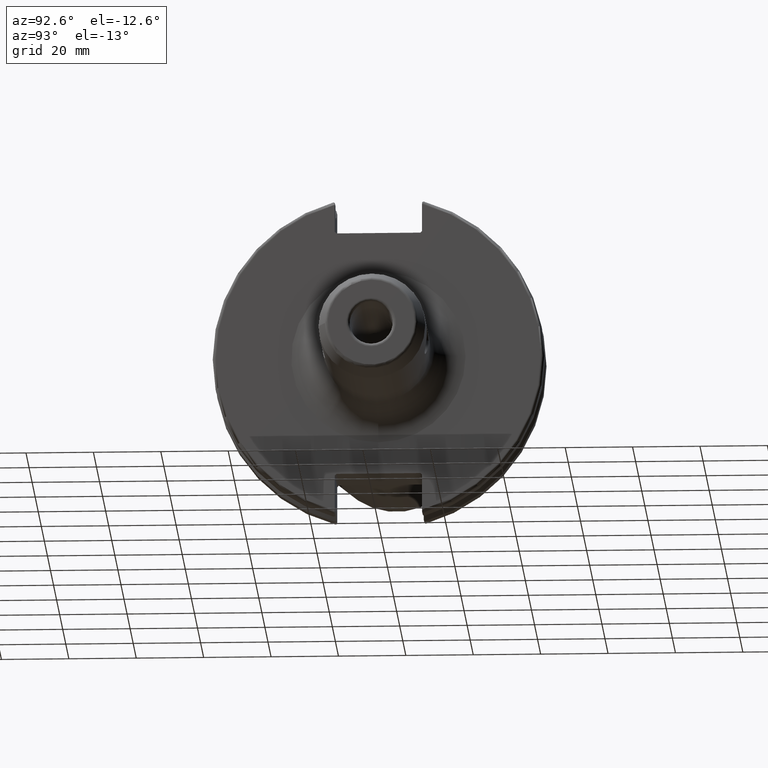
[diagram: clean part render]
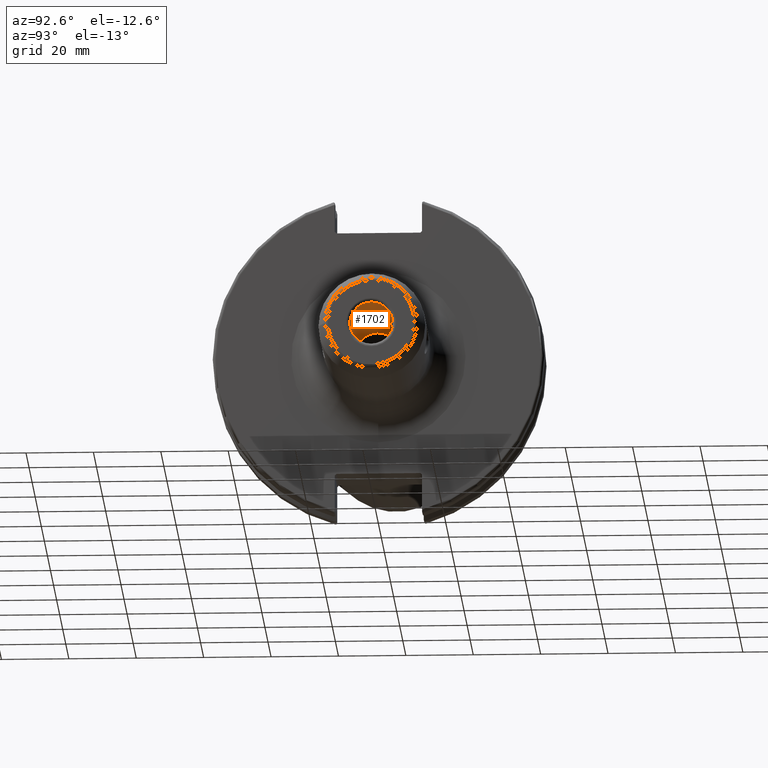
[diagram: same view with one face highlighted and labeled with its STEP entity id]
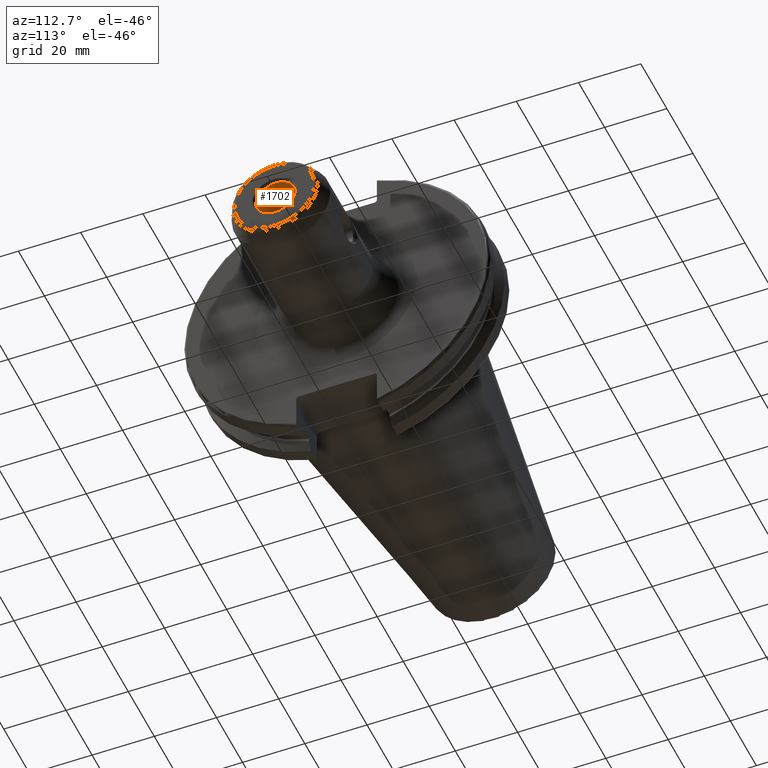
[diagram: same view with one face highlighted and labeled with its STEP entity id]
A machine part, auxiliary view. The second image highlights one B-rep face of the part: STEP entity #1702.
A second angle (auxiliary view) of the same face is appended — the face is thin or edge-on in the first view.
In plain terms, the highlighted cylindrical surface (bore or boss wall) has radius 6.35 mm, axis along (1, 0, 0).
Its self-contained STEP definition (entity closure, byte-faithful):
#47=FACE_BOUND('',#549,.T.);
#130=LINE('',#2731,#225);
#225=VECTOR('',#2100,6.35);
#329=CIRCLE('',#1834,6.35);
#330=CIRCLE('',#1835,6.35);
#333=CIRCLE('',#1840,6.35);
#334=CIRCLE('',#1841,6.35);
#419=CYLINDRICAL_SURFACE('',#1839,6.35);
#455=FACE_OUTER_BOUND('',#548,.T.);
#548=EDGE_LOOP('',(#1229,#1230,#1231,#1232,#1233,#1234));
#549=EDGE_LOOP('',(#1235,#1236));
#646=B_SPLINE_CURVE_WITH_KNOTS('',3,(#2565,#2566,#2567,#2568,#2569,#2570,
#2571,#2572,#2573,#2574,#2575,#2576,#2577,#2578,#2579,#2580,#2581,#2582,
#2583,#2584,#2585,#2586,#2587,#2588,#2589,#2590,#2591,#2592,#2593,#2594,
#2595,#2596),.UNSPECIFIED.,.F.,.F.,(4,2,2,2,2,2,2,2,2,2,2,2,2,2,2,4),(0.,
0.0984926911208122,0.196985382241624,0.393970764483249,0.586264117205991,
0.778557469928733,0.970850822651475,1.16314417537422,1.36012955761584,1.45862224873665,
1.55711493985747,1.65560763097828,1.75410032209909,1.95108570434071,2.14337905706345,
2.3356724097862),.UNSPECIFIED.);
#647=B_SPLINE_CURVE_WITH_KNOTS('',3,(#2597,#2598,#2599,#2600,#2601,#2602,
#2603,#2604,#2605,#2606,#2607,#2608),.UNSPECIFIED.,.F.,.F.,(4,2,2,2,2,4),
(2.3356724097862,2.52796576250894,2.72025911523168,2.9172444974733,3.01573718859412,
3.11422987971493),.UNSPECIFIED.);
#693=VERTEX_POINT('',#2562);
#694=VERTEX_POINT('',#2564);
#726=VERTEX_POINT('',#2719);
#727=VERTEX_POINT('',#2721);
#730=VERTEX_POINT('',#2730);
#731=VERTEX_POINT('',#2732);
#886=EDGE_CURVE('',#694,#693,#646,.T.);
#887=EDGE_CURVE('',#693,#694,#647,.T.);
#926=EDGE_CURVE('',#726,#727,#329,.T.);
#927=EDGE_CURVE('',#727,#726,#330,.T.);
#930=EDGE_CURVE('',#727,#730,#130,.T.);
#931=EDGE_CURVE('',#730,#731,#333,.T.);
#932=EDGE_CURVE('',#731,#730,#334,.T.);
#1229=ORIENTED_EDGE('',*,*,#926,.F.);
#1230=ORIENTED_EDGE('',*,*,#927,.F.);
#1231=ORIENTED_EDGE('',*,*,#930,.T.);
#1232=ORIENTED_EDGE('',*,*,#931,.T.);
#1233=ORIENTED_EDGE('',*,*,#932,.T.);
#1234=ORIENTED_EDGE('',*,*,#930,.F.);
#1235=ORIENTED_EDGE('',*,*,#886,.T.);
#1236=ORIENTED_EDGE('',*,*,#887,.T.);
#1702=ADVANCED_FACE('',(#455,#47),#419,.F.);
#1834=AXIS2_PLACEMENT_3D('',#2722,#2088,#2089);
#1835=AXIS2_PLACEMENT_3D('',#2723,#2090,#2091);
#1839=AXIS2_PLACEMENT_3D('',#2729,#2098,#2099);
#1840=AXIS2_PLACEMENT_3D('',#2733,#2101,#2102);
#1841=AXIS2_PLACEMENT_3D('',#2734,#2103,#2104);
#2088=DIRECTION('center_axis',(-1.,0.,0.));
#2089=DIRECTION('ref_axis',(0.,-1.22464679914735E-16,1.));
#2090=DIRECTION('center_axis',(-1.,0.,0.));
#2091=DIRECTION('ref_axis',(0.,-1.22464679914735E-16,1.));
#2098=DIRECTION('center_axis',(1.,0.,0.));
#2099=DIRECTION('ref_axis',(0.,0.,-1.));
#2100=DIRECTION('',(-1.,0.,0.));
#2101=DIRECTION('center_axis',(-1.,0.,0.));
#2102=DIRECTION('ref_axis',(0.,0.,-1.));
#2103=DIRECTION('center_axis',(-1.,0.,0.));
#2104=DIRECTION('ref_axis',(0.,0.,-1.));
#2562=CARTESIAN_POINT('',(41.9359,6.35,6.44784919981993E-16));
#2564=CARTESIAN_POINT('',(46.8,4.08203762721511,4.8641));
#2565=CARTESIAN_POINT('Ctrl Pts',(46.8,4.08203762721511,4.8641));
#2566=CARTESIAN_POINT('Ctrl Pts',(47.1283089704027,4.08203762721511,4.8641));
#2567=CARTESIAN_POINT('Ctrl Pts',(47.45674516591,4.12285007981399,4.83056934710562));
#2568=CARTESIAN_POINT('Ctrl Pts',(48.095391925752,4.27137197971262,4.69975257900775));
#2569=CARTESIAN_POINT('Ctrl Pts',(48.4057788490239,4.37838386103913,4.60253646928392));
#2570=CARTESIAN_POINT('Ctrl Pts',(49.2894834666426,4.75134654570808,4.22747517891783));
#2571=CARTESIAN_POINT('Ctrl Pts',(49.8169274523701,5.0656178137759,3.86194873636887));
#2572=CARTESIAN_POINT('Ctrl Pts',(50.6518848809612,5.60362060326425,3.02699130777775));
#2573=CARTESIAN_POINT('Ctrl Pts',(51.0232790786749,5.87111368991344,2.49860033294107));
#2574=CARTESIAN_POINT('Ctrl Pts',(51.5299931623389,6.24553636617503,1.30623756351294));
#2575=CARTESIAN_POINT('Ctrl Pts',(51.6641,6.35,0.64097784240914));
#2576=CARTESIAN_POINT('Ctrl Pts',(51.6641,6.35,-0.640977842409141));
#2577=CARTESIAN_POINT('Ctrl Pts',(51.5299931623389,6.24553636617503,-1.30623756351294));
#2578=CARTESIAN_POINT('Ctrl Pts',(51.0232790786749,5.87111368991344,-2.49860033294107));
#2579=CARTESIAN_POINT('Ctrl Pts',(50.6518848809612,5.60362060326425,-3.02699130777775));
#2580=CARTESIAN_POINT('Ctrl Pts',(49.8169274523701,5.0656178137759,-3.86194873636887));
#2581=CARTESIAN_POINT('Ctrl Pts',(49.2894834666426,4.75134654570807,-4.22747517891783));
#2582=CARTESIAN_POINT('Ctrl Pts',(48.4057788490239,4.37838386103913,-4.60253646928392));
#2583=CARTESIAN_POINT('Ctrl Pts',(48.095391925752,4.27137197971262,-4.69975257900775));
#2584=CARTESIAN_POINT('Ctrl Pts',(47.45674516591,4.12285007981399,-4.83056934710562));
#2585=CARTESIAN_POINT('Ctrl Pts',(47.1283089704027,4.08203762721512,-4.8641));
#2586=CARTESIAN_POINT('Ctrl Pts',(46.4716910295973,4.08203762721511,-4.8641));
#2587=CARTESIAN_POINT('Ctrl Pts',(46.1432548340899,4.12285007981399,-4.83056934710563));
#2588=CARTESIAN_POINT('Ctrl Pts',(45.504608074248,4.27137197971261,-4.69975257900775));
#2589=CARTESIAN_POINT('Ctrl Pts',(45.1942211509761,4.37838386103912,-4.60253646928393));
#2590=CARTESIAN_POINT('Ctrl Pts',(44.3105165333574,4.75134654570806,-4.22747517891784));
#2591=CARTESIAN_POINT('Ctrl Pts',(43.7830725476299,5.0656178137759,-3.86194873636887));
#2592=CARTESIAN_POINT('Ctrl Pts',(42.9481151190388,5.60362060326424,-3.02699130777776));
#2593=CARTESIAN_POINT('Ctrl Pts',(42.5767209213251,5.87111368991344,-2.49860033294109));
#2594=CARTESIAN_POINT('Ctrl Pts',(42.070006837661,6.24553636617503,-1.30623756351296));
#2595=CARTESIAN_POINT('Ctrl Pts',(41.9359,6.35,-0.640977842409142));
#2596=CARTESIAN_POINT('Ctrl Pts',(41.9359,6.35,1.38777878078145E-16));
#2597=CARTESIAN_POINT('Ctrl Pts',(41.9359,6.35,6.93889390390723E-16));
#2598=CARTESIAN_POINT('Ctrl Pts',(41.9359,6.35,0.640977842409143));
#2599=CARTESIAN_POINT('Ctrl Pts',(42.070006837661,6.24553636617502,1.30623756351296));
#2600=CARTESIAN_POINT('Ctrl Pts',(42.5767209213251,5.87111368991343,2.4986003329411));
#2601=CARTESIAN_POINT('Ctrl Pts',(42.9481151190388,5.60362060326424,3.02699130777777));
#2602=CARTESIAN_POINT('Ctrl Pts',(43.7830725476299,5.0656178137759,3.86194873636887));
#2603=CARTESIAN_POINT('Ctrl Pts',(44.3105165333574,4.75134654570805,4.22747517891785));
#2604=CARTESIAN_POINT('Ctrl Pts',(45.1942211509761,4.37838386103912,4.60253646928393));
#2605=CARTESIAN_POINT('Ctrl Pts',(45.504608074248,4.27137197971261,4.69975257900775));
#2606=CARTESIAN_POINT('Ctrl Pts',(46.1432548340899,4.12285007981399,4.83056934710562));
#2607=CARTESIAN_POINT('Ctrl Pts',(46.4716910295973,4.08203762721511,4.8641));
#2608=CARTESIAN_POINT('Ctrl Pts',(46.8,4.08203762721511,4.8641));
#2719=CARTESIAN_POINT('',(65.8,0.,-6.35));
#2721=CARTESIAN_POINT('',(65.8,-7.77650717458569E-16,6.35));
#2722=CARTESIAN_POINT('Origin',(65.8,0.,0.));
#2723=CARTESIAN_POINT('Origin',(65.8,0.,0.));
#2729=CARTESIAN_POINT('Origin',(-150.024395574536,0.,0.));
#2730=CARTESIAN_POINT('',(23.7905594023679,7.77650717458569E-16,6.35));
#2731=CARTESIAN_POINT('',(-150.024395574536,-7.77650717458569E-16,6.35));
#2732=CARTESIAN_POINT('',(23.7905594023679,-7.7765071745857E-16,-6.35000000000001));
#2733=CARTESIAN_POINT('Origin',(23.7905594023679,0.,0.));
#2734=CARTESIAN_POINT('Origin',(23.7905594023679,0.,0.));